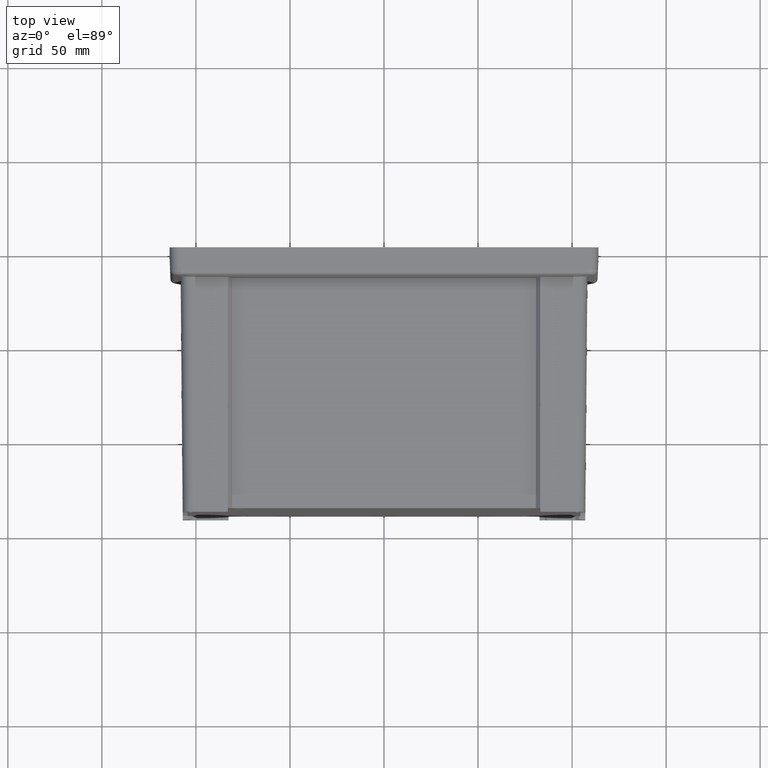
[diagram: clean part render]
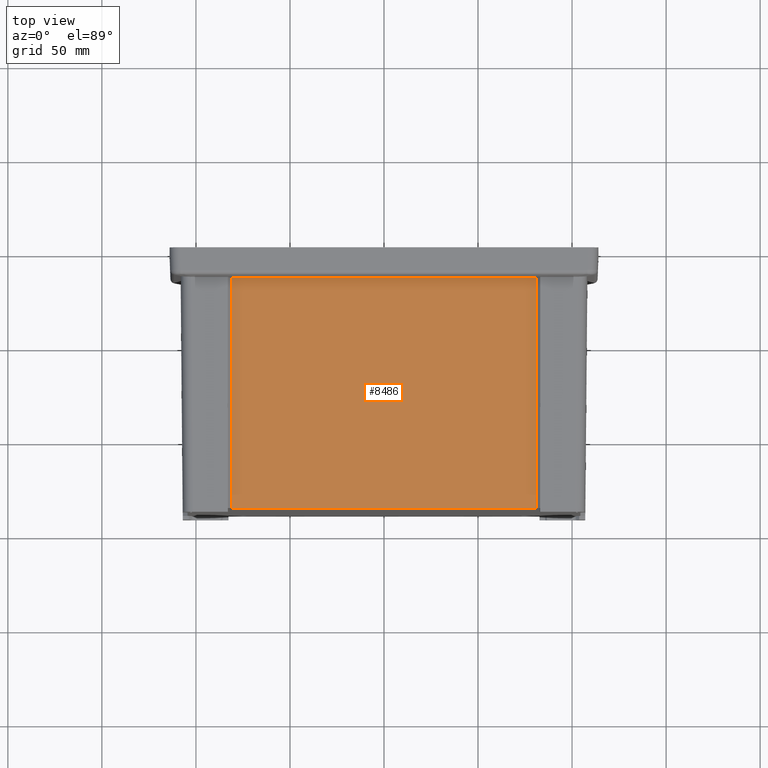
[diagram: same view with one face highlighted and labeled with its STEP entity id]
A machine part, top view. The second image highlights one B-rep face of the part: STEP entity #8486.
In plain terms, the highlighted planar face has unit normal (0, -0.0087, 1).
Its self-contained STEP definition (entity closure, byte-faithful):
#1149 = EDGE_CURVE ( 'NONE', #3876, #6429, #13109, .T. ) ;
#1499 = DIRECTION ( 'NONE',  ( -1.000000000000000000, 0.0000000000000000000, 0.0000000000000000000 ) ) ;
#1919 = VERTEX_POINT ( 'NONE', #6195 ) ;
#2480 = DIRECTION ( 'NONE',  ( -0.0009171954542835111900, 0.9999615024563482900, 0.008726531827788430700 ) ) ;
#2958 = VECTOR ( 'NONE', #2480, 999.9999999999998900 ) ;
#3157 = CARTESIAN_POINT ( 'NONE',  ( -106.0000000000000000, -16.14146090729242300, 130.4363277643964000 ) ) ;
#3415 = EDGE_CURVE ( 'NONE', #7200, #6429, #10060, .T. ) ;
#3876 = VERTEX_POINT ( 'NONE', #10131 ) ;
#4388 = CARTESIAN_POINT ( 'NONE',  ( -106.0000000000000000, -16.14146090729242300, 130.4363277643964000 ) ) ;
#5738 = CARTESIAN_POINT ( 'NONE',  ( -80.89322913650730100, -16.14146090729241900, 130.4363277643964000 ) ) ;
#6195 = CARTESIAN_POINT ( 'NONE',  ( 80.78099812004025200, -138.5000000000000000, 129.3685209706635200 ) ) ;
#6429 = VERTEX_POINT ( 'NONE', #5738 ) ;
#6746 = PLANE ( 'NONE',  #12548 ) ;
#6755 = EDGE_LOOP ( 'NONE', ( #10490, #9580, #10905, #11119 ) ) ;
#6961 = CARTESIAN_POINT ( 'NONE',  ( 80.89322913650731600, -16.14146090729242300, 130.4363277643964000 ) ) ;
#7200 = VERTEX_POINT ( 'NONE', #6961 ) ;
#8197 = DIRECTION ( 'NONE',  ( -0.0009171954542836995100, -0.9999615024563482900, -0.008726531827788429000 ) ) ;
#8486 = ADVANCED_FACE ( 'NONE', ( #15298 ), #6746, .T. ) ;
#9125 = DIRECTION ( 'NONE',  ( -1.000000000000000000, -0.0000000000000000000, -0.0000000000000000000 ) ) ;
#9281 = DIRECTION ( 'NONE',  ( 0.0000000000000000000, -0.008726535498377293100, 0.9999619230641713100 ) ) ;
#9580 = ORIENTED_EDGE ( 'NONE', *, *, #3415, .T. ) ;
#10060 = LINE ( 'NONE', #3157, #12471 ) ;
#10131 = CARTESIAN_POINT ( 'NONE',  ( -80.78099812004026600, -138.5000000000000000, 129.3685209706635200 ) ) ;
#10135 = EDGE_CURVE ( 'NONE', #7200, #1919, #11509, .T. ) ;
#10490 = ORIENTED_EDGE ( 'NONE', *, *, #10135, .F. ) ;
#10905 = ORIENTED_EDGE ( 'NONE', *, *, #1149, .F. ) ;
#10916 = CARTESIAN_POINT ( 'NONE',  ( -80.89325025751556100, -16.11843397769904500, 130.4365287173665700 ) ) ;
#11119 = ORIENTED_EDGE ( 'NONE', *, *, #12300, .F. ) ;
#11509 = LINE ( 'NONE', #15380, #12629 ) ;
#12300 = EDGE_CURVE ( 'NONE', #1919, #3876, #12383, .T. ) ;
#12383 = LINE ( 'NONE', #14549, #12583 ) ;
#12471 = VECTOR ( 'NONE', #9125, 1000.000000000000000 ) ;
#12548 = AXIS2_PLACEMENT_3D ( 'NONE', #4388, #9281, #12783 ) ;
#12583 = VECTOR ( 'NONE', #1499, 1000.000000000000000 ) ;
#12629 = VECTOR ( 'NONE', #8197, 999.9999999999998900 ) ;
#12783 = DIRECTION ( 'NONE',  ( 0.0000000000000000000, -0.9999619230641712000, -0.008726535498377291400 ) ) ;
#13109 = LINE ( 'NONE', #10916, #2958 ) ;
#14549 = CARTESIAN_POINT ( 'NONE',  ( -106.0000000000000000, -138.5000000000000000, 129.3685209706635200 ) ) ;
#15298 = FACE_OUTER_BOUND ( 'NONE', #6755, .T. ) ;
#15380 = CARTESIAN_POINT ( 'NONE',  ( 80.89307191304533300, -16.31287192833551100, 130.4348318830778600 ) ) ;